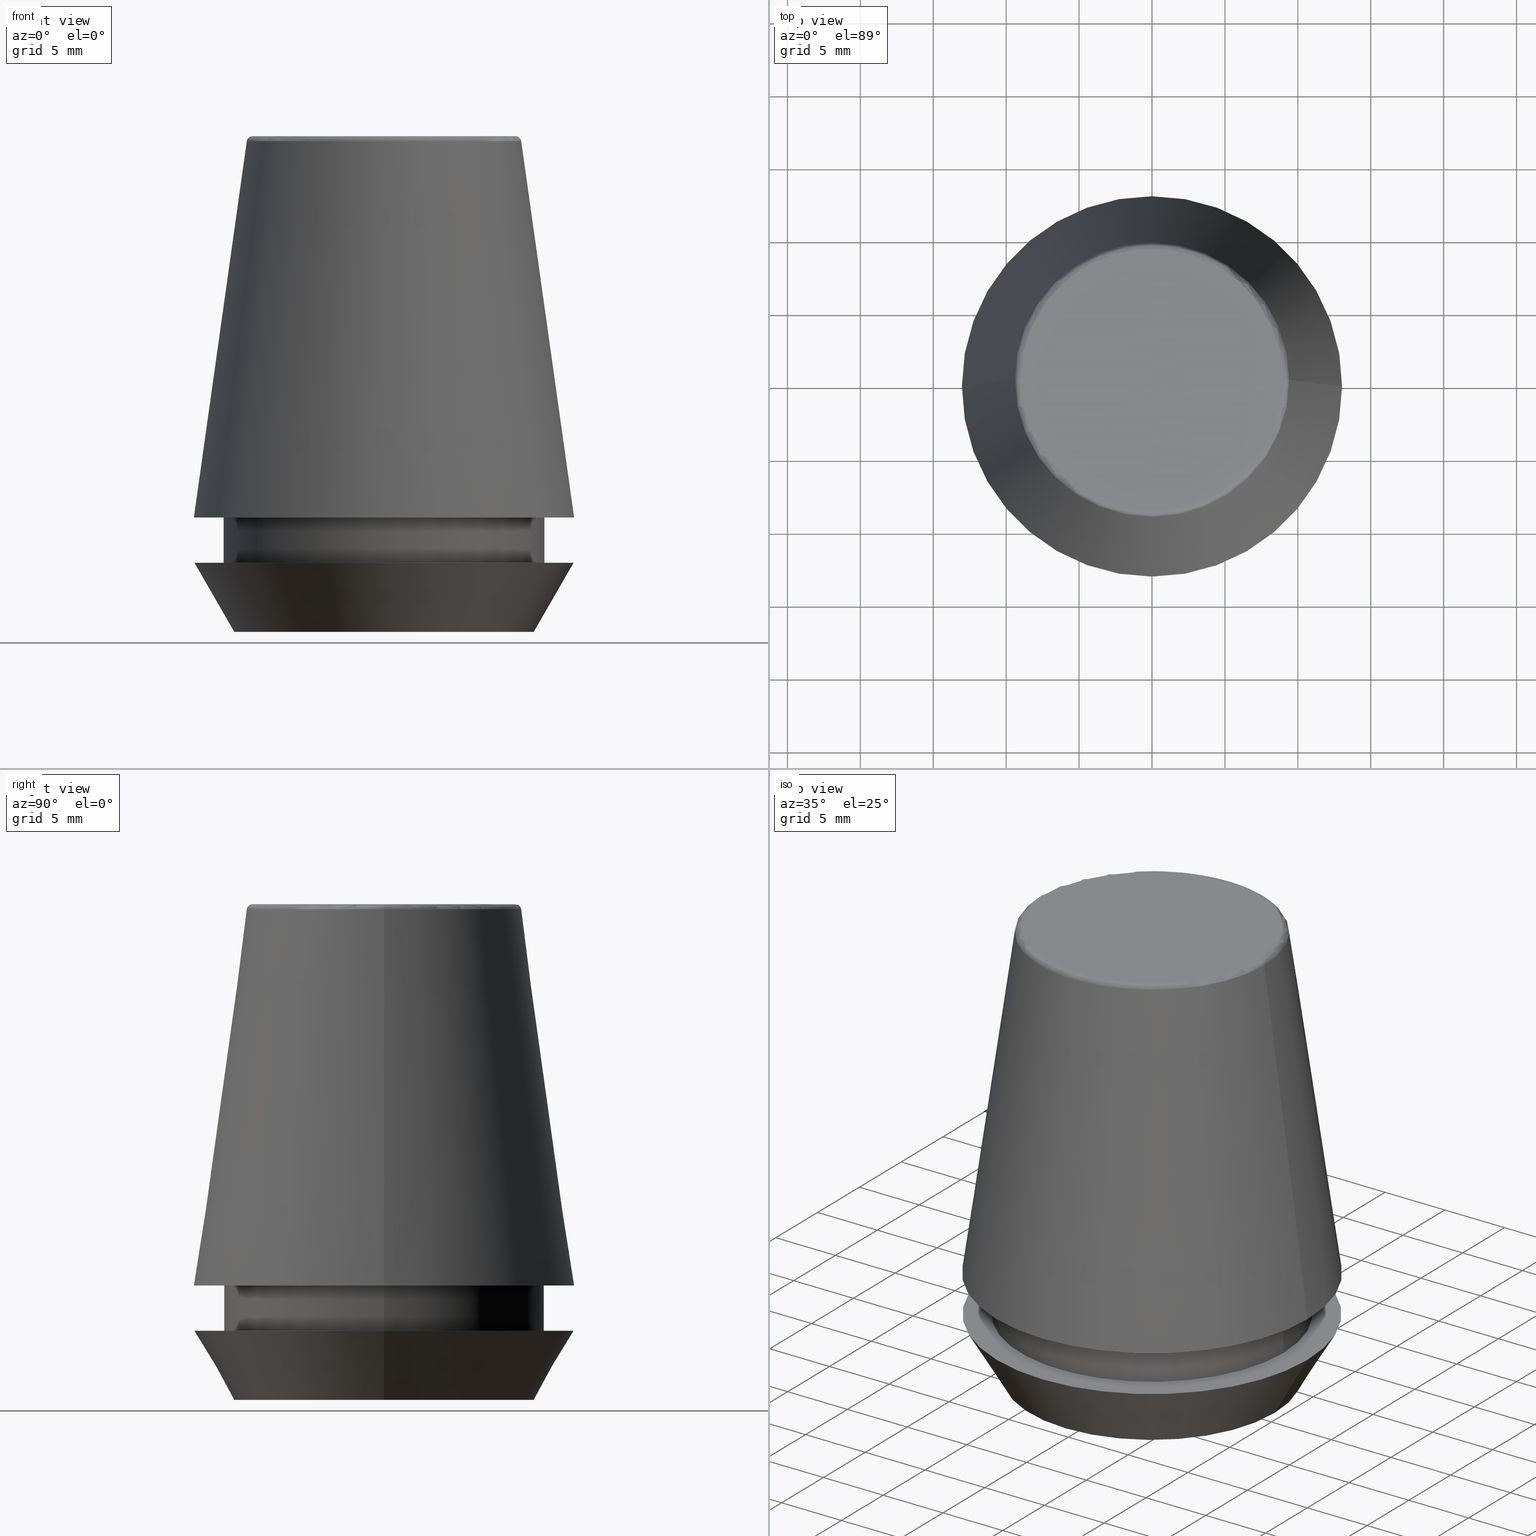
[diagram: canonical four-view strip — front | top / right | iso, engineering-drawing reading convention]
A machine part, canonical four-view strip (front | top / right | iso — engineering-drawing reading convention). The complete STEP part file that produces these views, byte-faithful:
ISO-10303-21;
HEADER;
FILE_DESCRIPTION (( 'STEP AP203' ),
    '1' );
FILE_NAME ('TAP COLLET ER 25G  7.0  X 5.5.STEP',
    '2019-04-09T09:58:05',
    ( '' ),
    ( '' ),
    'SwSTEP 2.0',
    'SolidWorks 2014',
    '' );
FILE_SCHEMA (( 'CONFIG_CONTROL_DESIGN' ));
ENDSEC;

DATA;
#1 = DATE_AND_TIME ( #14, #43 ) ;
#2 = ORIENTED_EDGE ( 'NONE', *, *, #250, .T. ) ;
#3 = APPLICATION_PROTOCOL_DEFINITION ( 'international standard', 'config_control_design', 1994, #4 ) ;
#4 = APPLICATION_CONTEXT ( 'configuration controlled 3d designs of mechanical parts and assemblies' ) ;
#5 = ADVANCED_FACE ( 'NONE', ( #219 ), #291, .T. ) ;
#6 = ADVANCED_FACE ( 'NONE', ( #253 ), #374, .T. ) ;
#7 = VERTEX_POINT ( 'NONE', #52 ) ;
#8 = DIRECTION ( 'NONE',  ( -1.000000000000000000, 1.224646799147353200E-016, 0.0000000000000000000 ) ) ;
#9 = PERSON_AND_ORGANIZATION ( #358, #142 ) ;
#10 = ORIENTED_EDGE ( 'NONE', *, *, #202, .F. ) ;
#11 = ORIENTED_EDGE ( 'NONE', *, *, #186, .T. ) ;
#12 = AXIS2_PLACEMENT_3D ( 'NONE', #345, #176, #41 ) ;
#13 = CARTESIAN_POINT ( 'NONE',  ( 0.0000000000000000000, 0.0000000000000000000, 7.842050807568890400 ) ) ;
#14 = CALENDAR_DATE ( 2019, 9, 4 ) ;
#15 = EDGE_LOOP ( 'NONE', ( #293, #312 ) ) ;
#16 = PERSON_AND_ORGANIZATION_ROLE ( 'design_owner' ) ;
#17 = CIRCLE ( 'NONE', #92, 0.3999999999999975800 ) ;
#18 = DIRECTION ( 'NONE',  ( 1.000000000000000000, 0.0000000000000000000, 0.0000000000000000000 ) ) ;
#19 = CARTESIAN_POINT ( 'NONE',  ( -9.012603057622234500, 1.127980121063915600E-015, 34.00000000000000000 ) ) ;
#20 = FACE_OUTER_BOUND ( 'NONE', #218, .T. ) ;
#21 = AXIS2_PLACEMENT_3D ( 'NONE', #375, #45, #90 ) ;
#22 = EDGE_LOOP ( 'NONE', ( #97, #268 ) ) ;
#23 = CC_DESIGN_APPROVAL ( #115, ( #120 ) ) ;
#24 = CIRCLE ( 'NONE', #246, 0.4000000000000010200 ) ;
#25 = LINE ( 'NONE', #301, #80 ) ;
#26 = EDGE_LOOP ( 'NONE', ( #209, #10, #328, #357 ) ) ;
#27 = APPROVAL_ROLE ( '' ) ;
#28 = PERSON_AND_ORGANIZATION_ROLE ( 'creator' ) ;
#29 = CIRCLE ( 'NONE', #46, 11.00000000000000000 ) ;
#30 = VERTEX_POINT ( 'NONE', #19 ) ;
#31 = DIRECTION ( 'NONE',  ( 0.0000000000000000000, 0.0000000000000000000, -1.000000000000000000 ) ) ;
#32 = CC_DESIGN_SECURITY_CLASSIFICATION ( #120, ( #335 ) ) ;
#33 = VERTEX_POINT ( 'NONE', #300 ) ;
#34 = DIRECTION ( 'NONE',  ( 0.0000000000000000000, 0.0000000000000000000, -1.000000000000000000 ) ) ;
#35 = LINE ( 'NONE', #194, #95 ) ;
#36 = CYLINDRICAL_SURFACE ( 'NONE', #44, 11.00000000000000000 ) ;
#37 = DIRECTION ( 'NONE',  ( 1.000000000000000000, 0.0000000000000000000, 0.0000000000000000000 ) ) ;
#38 = ORIENTED_EDGE ( 'NONE', *, *, #267, .T. ) ;
#39 = ADVANCED_FACE ( 'NONE', ( #275 ), #213, .T. ) ;
#40 = CC_DESIGN_PERSON_AND_ORGANIZATION_ASSIGNMENT ( #204, #62, ( #335 ) ) ;
#41 = DIRECTION ( 'NONE',  ( 1.000000000000000000, 0.0000000000000000000, 0.0000000000000000000 ) ) ;
#42 = ADVANCED_FACE ( 'NONE', ( #128, #181 ), #185, .F. ) ;
#43 = LOCAL_TIME ( 15, 28, 5.000000000000000000, #56 ) ;
#44 = AXIS2_PLACEMENT_3D ( 'NONE', #294, #377, #230 ) ;
#45 = DIRECTION ( 'NONE',  ( -0.0000000000000000000, -0.0000000000000000000, 1.000000000000000000 ) ) ;
#46 = AXIS2_PLACEMENT_3D ( 'NONE', #193, #365, #245 ) ;
#47 = CARTESIAN_POINT ( 'NONE',  ( 0.0000000000000000000, 0.0000000000000000000, 33.60000000000000100 ) ) ;
#48 = DIRECTION ( 'NONE',  ( -0.0000000000000000000, -0.0000000000000000000, 1.000000000000000000 ) ) ;
#49 = CARTESIAN_POINT ( 'NONE',  ( -10.26217568973925200, 1.424397449982127500E-015, 0.0000000000000000000 ) ) ;
#50 = LOCAL_TIME ( 15, 28, 5.000000000000000000, #368 ) ;
#51 = MANIFOLD_SOLID_BREP ( 'Revolve1', #236 ) ;
#52 = CARTESIAN_POINT ( 'NONE',  ( -13.03657776635556700, 0.0000000000000000000, 7.842050807568876200 ) ) ;
#53 = DATE_TIME_ROLE ( 'classification_date' ) ;
#54 = FACE_OUTER_BOUND ( 'NONE', #169, .T. ) ;
#55 = SHAPE_DEFINITION_REPRESENTATION ( #274, #284 ) ;
#56 = COORDINATED_UNIVERSAL_TIME_OFFSET ( 5, 30, .AHEAD. ) ;
#57 = CIRCLE ( 'NONE', #273, 11.00000000000000000 ) ;
#58 = CALENDAR_DATE ( 2019, 9, 4 ) ;
#59 = CIRCLE ( 'NONE', #21, 10.26217568973925200 ) ;
#60 = AXIS2_PLACEMENT_3D ( 'NONE', #261, #79, #179 ) ;
#61 = ORIENTED_EDGE ( 'NONE', *, *, #307, .F. ) ;
#62 = PERSON_AND_ORGANIZATION_ROLE ( 'design_supplier' ) ;
#63 = PRODUCT_RELATED_PRODUCT_CATEGORY ( 'detail', '', ( #385 ) ) ;
#64 = CARTESIAN_POINT ( 'NONE',  ( 0.0000000000000000000, 0.0000000000000000000, 0.0000000000000000000 ) ) ;
#65 = APPROVAL_PERSON_ORGANIZATION ( #78, #170, #27 ) ;
#66 = CIRCLE ( 'NONE', #60, 13.03657776635556700 ) ;
#67 = DIRECTION ( 'NONE',  ( -0.0000000000000000000, -0.0000000000000000000, 1.000000000000000000 ) ) ;
#68 = CARTESIAN_POINT ( 'NONE',  ( 0.0000000000000000000, 0.0000000000000000000, 7.842050807568876200 ) ) ;
#69 = DIRECTION ( 'NONE',  ( 1.000000000000000000, 0.0000000000000000000, 0.0000000000000000000 ) ) ;
#70 = FACE_OUTER_BOUND ( 'NONE', #15, .T. ) ;
#71 =( GEOMETRIC_REPRESENTATION_CONTEXT ( 3 ) GLOBAL_UNCERTAINTY_ASSIGNED_CONTEXT ( ( #237 ) ) GLOBAL_UNIT_ASSIGNED_CONTEXT ( ( #386, #104, #74 ) ) REPRESENTATION_CONTEXT ( 'NONE', 'WORKASPACE' ) );
#72 = DIRECTION ( 'NONE',  ( -0.0000000000000000000, -0.0000000000000000000, 1.000000000000000000 ) ) ;
#73 = CARTESIAN_POINT ( 'NONE',  ( 0.0000000000000000000, 0.0000000000000000000, 7.842050807568876200 ) ) ;
#74 =( NAMED_UNIT ( * ) SI_UNIT ( $, .STERADIAN. ) SOLID_ANGLE_UNIT ( ) );
#75 = APPROVAL_PERSON_ORGANIZATION ( #165, #366, #150 ) ;
#76 = CC_DESIGN_DATE_AND_TIME_ASSIGNMENT ( #247, #53, ( #120 ) ) ;
#77 = CIRCLE ( 'NONE', #175, 13.03657776635556700 ) ;
#78 = PERSON_AND_ORGANIZATION ( #358, #142 ) ;
#79 = DIRECTION ( 'NONE',  ( -0.0000000000000000000, -0.0000000000000000000, 1.000000000000000000 ) ) ;
#80 = VECTOR ( 'NONE', #126, 1000.000000000000200 ) ;
#81 = DIRECTION ( 'NONE',  ( 1.000000000000000000, 0.0000000000000000000, 0.0000000000000000000 ) ) ;
#82 = CARTESIAN_POINT ( 'NONE',  ( 0.0000000000000000000, 9.012603057622234500, 34.00000000000000000 ) ) ;
#83 = CARTESIAN_POINT ( 'NONE',  ( 0.0000000000000000000, 0.0000000000000000000, 0.0000000000000000000 ) ) ;
#84 = DIRECTION ( 'NONE',  ( 1.000000000000000000, 0.0000000000000000000, 0.0000000000000000000 ) ) ;
#85 = AXIS2_PLACEMENT_3D ( 'NONE', #276, #362, #248 ) ;
#86 = EDGE_LOOP ( 'NONE', ( #283, #11, #257, #224 ) ) ;
#87 = VECTOR ( 'NONE', #145, 1000.000000000000000 ) ;
#88 = CC_DESIGN_PERSON_AND_ORGANIZATION_ASSIGNMENT ( #384, #323, ( #120 ) ) ;
#89 = ADVANCED_FACE ( 'NONE', ( #155 ), #217, .T. ) ;
#90 = DIRECTION ( 'NONE',  ( 1.000000000000000000, 0.0000000000000000000, 0.0000000000000000000 ) ) ;
#91 = ORIENTED_EDGE ( 'NONE', *, *, #220, .T. ) ;
#92 = AXIS2_PLACEMENT_3D ( 'NONE', #331, #363, #31 ) ;
#93 = ORIENTED_EDGE ( 'NONE', *, *, #149, .F. ) ;
#94 = DATE_TIME_ROLE ( 'creation_date' ) ;
#95 = VECTOR ( 'NONE', #98, 1000.000000000000000 ) ;
#96 = AXIS2_PLACEMENT_3D ( 'NONE', #136, #259, #303 ) ;
#97 = ORIENTED_EDGE ( 'NONE', *, *, #171, .T. ) ;
#98 = DIRECTION ( 'NONE',  ( 0.1391731009600587800, 1.704378926181474000E-017, -0.9902680687415712500 ) ) ;
#99 = VERTEX_POINT ( 'NONE', #49 ) ;
#100 = CARTESIAN_POINT ( 'NONE',  ( 0.0000000000000000000, 0.0000000000000000000, 0.0000000000000000000 ) ) ;
#101 = CARTESIAN_POINT ( 'NONE',  ( -13.03657776635556700, 0.0000000000000000000, 7.842050807568876200 ) ) ;
#102 = AXIS2_PLACEMENT_3D ( 'NONE', #47, #112, #269 ) ;
#103 = VERTEX_POINT ( 'NONE', #347 ) ;
#104 =( NAMED_UNIT ( * ) PLANE_ANGLE_UNIT ( ) SI_UNIT ( $, .RADIAN. ) );
#105 = DIRECTION ( 'NONE',  ( -0.4999999999999957800, 6.123233995736714300E-017, 0.8660254037844410400 ) ) ;
#106 = CARTESIAN_POINT ( 'NONE',  ( -10.26217568973925200, 1.256754061072695800E-015, 0.0000000000000000000 ) ) ;
#107 = DATE_AND_TIME ( #127, #134 ) ;
#108 = CIRCLE ( 'NONE', #154, 9.012603057622234500 ) ;
#109 = CIRCLE ( 'NONE', #96, 10.26217568973925200 ) ;
#110 = EDGE_LOOP ( 'NONE', ( #215, #260, #119, #330 ) ) ;
#111 = ADVANCED_FACE ( 'NONE', ( #305 ), #36, .T. ) ;
#112 = DIRECTION ( 'NONE',  ( -0.0000000000000000000, -0.0000000000000000000, 1.000000000000000000 ) ) ;
#113 = EDGE_LOOP ( 'NONE', ( #184, #326, #167, #370 ) ) ;
#114 = DIRECTION ( 'NONE',  ( 1.000000000000000000, 0.0000000000000000000, 0.0000000000000000000 ) ) ;
#115 = APPROVAL ( #216, 'UNSPECIFIED' ) ;
#116 = DIRECTION ( 'NONE',  ( 0.0000000000000000000, 0.0000000000000000000, -1.000000000000000000 ) ) ;
#117 = TOROIDAL_SURFACE ( 'NONE', #102, 9.012603057622234500, 0.4000000000000009700 ) ;
#118 = ORIENTED_EDGE ( 'NONE', *, *, #171, .F. ) ;
#119 = ORIENTED_EDGE ( 'NONE', *, *, #262, .F. ) ;
#120 = SECURITY_CLASSIFICATION ( '', '', #130 ) ;
#121 = APPROVAL_ROLE ( '' ) ;
#122 = ORIENTED_EDGE ( 'NONE', *, *, #267, .F. ) ;
#123 = ADVANCED_FACE ( 'NONE', ( #20 ), #117, .T. ) ;
#124 = EDGE_LOOP ( 'NONE', ( #251, #122 ) ) ;
#125 = CARTESIAN_POINT ( 'NONE',  ( -9.012603057622234500, 1.103725548650271700E-015, 33.60000000000000100 ) ) ;
#126 = DIRECTION ( 'NONE',  ( 0.4999999999999957800, 0.0000000000000000000, 0.8660254037844410400 ) ) ;
#127 = CALENDAR_DATE ( 2019, 9, 4 ) ;
#128 = FACE_OUTER_BOUND ( 'NONE', #129, .T. ) ;
#129 = EDGE_LOOP ( 'NONE', ( #339, #201 ) ) ;
#130 = SECURITY_CLASSIFICATION_LEVEL ( 'unclassified' ) ;
#131 = APPROVAL_STATUS ( 'not_yet_approved' ) ;
#132 = ORIENTED_EDGE ( 'NONE', *, *, #295, .T. ) ;
#133 = PRODUCT_DEFINITION ( 'UNKNOWN', '', #335, #156 ) ;
#134 = LOCAL_TIME ( 15, 28, 5.000000000000000000, #159 ) ;
#135 = CIRCLE ( 'NONE', #85, 9.408710285118862900 ) ;
#136 = CARTESIAN_POINT ( 'NONE',  ( 0.0000000000000000000, 0.0000000000000000000, 0.0000000000000000000 ) ) ;
#137 = DIRECTION ( 'NONE',  ( -0.0000000000000000000, -0.0000000000000000000, 1.000000000000000000 ) ) ;
#138 = CC_DESIGN_APPROVAL ( #170, ( #335 ) ) ;
#139 = VERTEX_POINT ( 'NONE', #316 ) ;
#140 = CONICAL_SURFACE ( 'NONE', #227, 10.26217568973925200, 0.5235987755982940400 ) ;
#141 = DIRECTION ( 'NONE',  ( 1.000000000000000000, 0.0000000000000000000, 0.0000000000000000000 ) ) ;
#142 = ORGANIZATION ( 'UNSPECIFIED', 'UNSPECIFIED', '' ) ;
#143 = CARTESIAN_POINT ( 'NONE',  ( 10.26217568973925200, 0.0000000000000000000, 0.0000000000000000000 ) ) ;
#144 = ADVANCED_FACE ( 'NONE', ( #192 ), #207, .F. ) ;
#145 = DIRECTION ( 'NONE',  ( -0.0000000000000000000, -0.0000000000000000000, 1.000000000000000000 ) ) ;
#146 = DIRECTION ( 'NONE',  ( -1.000000000000000000, 0.0000000000000000000, -0.0000000000000000000 ) ) ;
#147 = EDGE_CURVE ( 'NONE', #30, #160, #342, .T. ) ;
#148 = APPLICATION_PROTOCOL_DEFINITION ( 'international standard', 'config_control_design', 1994, #266 ) ;
#149 = EDGE_CURVE ( 'NONE', #33, #195, #270, .T. ) ;
#150 = APPROVAL_ROLE ( '' ) ;
#151 = VECTOR ( 'NONE', #105, 1000.000000000000200 ) ;
#152 = EDGE_LOOP ( 'NONE', ( #278, #132, #2, #93 ) ) ;
#153 = EDGE_CURVE ( 'NONE', #7, #103, #66, .T. ) ;
#154 = AXIS2_PLACEMENT_3D ( 'NONE', #372, #67, #141 ) ;
#155 = FACE_OUTER_BOUND ( 'NONE', #113, .T. ) ;
#156 = DESIGN_CONTEXT ( 'detailed design', #266, 'design' ) ;
#157 = DIRECTION ( 'NONE',  ( -0.0000000000000000000, -0.0000000000000000000, 1.000000000000000000 ) ) ;
#158 = AXIS2_PLACEMENT_3D ( 'NONE', #13, #292, #314 ) ;
#159 = COORDINATED_UNIVERSAL_TIME_OFFSET ( 5, 30, .AHEAD. ) ;
#160 = VERTEX_POINT ( 'NONE', #315 ) ;
#161 = VECTOR ( 'NONE', #174, 1000.000000000000000 ) ;
#162 = DIRECTION ( 'NONE',  ( 1.224646799147353200E-016, 1.000000000000000000, 0.0000000000000000000 ) ) ;
#163 = EDGE_LOOP ( 'NONE', ( #367, #221, #91, #288 ) ) ;
#164 = CARTESIAN_POINT ( 'NONE',  ( 9.408710285118862900, 1.374377508408924700E-015, 33.65566924038402900 ) ) ;
#165 = PERSON_AND_ORGANIZATION ( #358, #142 ) ;
#166 = EDGE_CURVE ( 'NONE', #187, #243, #351, .T. ) ;
#167 = ORIENTED_EDGE ( 'NONE', *, *, #296, .T. ) ;
#168 = DIRECTION ( 'NONE',  ( 0.0000000000000000000, -0.0000000000000000000, 1.000000000000000000 ) ) ;
#169 = EDGE_LOOP ( 'NONE', ( #298, #38, #189, #61 ) ) ;
#170 = APPROVAL ( #131, 'UNSPECIFIED' ) ;
#171 = EDGE_CURVE ( 'NONE', #160, #30, #108, .T. ) ;
#172 = DIRECTION ( 'NONE',  ( 1.000000000000000000, 0.0000000000000000000, 0.0000000000000000000 ) ) ;
#173 = DIRECTION ( 'NONE',  ( -0.0000000000000000000, -0.0000000000000000000, 1.000000000000000000 ) ) ;
#174 = DIRECTION ( 'NONE',  ( -0.1391731009600587800, 0.0000000000000000000, -0.9902680687415712500 ) ) ;
#175 = AXIS2_PLACEMENT_3D ( 'NONE', #191, #282, #302 ) ;
#176 = DIRECTION ( 'NONE',  ( -0.0000000000000000000, -0.0000000000000000000, 1.000000000000000000 ) ) ;
#177 = VERTEX_POINT ( 'NONE', #143 ) ;
#178 = ORIENTED_EDGE ( 'NONE', *, *, #149, .T. ) ;
#179 = DIRECTION ( 'NONE',  ( 1.000000000000000000, 0.0000000000000000000, 0.0000000000000000000 ) ) ;
#180 = CARTESIAN_POINT ( 'NONE',  ( 0.0000000000000000000, 0.0000000000000000000, 4.742050807568884500 ) ) ;
#181 = FACE_BOUND ( 'NONE', #239, .T. ) ;
#182 = VECTOR ( 'NONE', #173, 1000.000000000000000 ) ;
#183 = CARTESIAN_POINT ( 'NONE',  ( 0.0000000000000000000, 0.0000000000000000000, 33.60000000000000100 ) ) ;
#184 = ORIENTED_EDGE ( 'NONE', *, *, #356, .F. ) ;
#185 = PLANE ( 'NONE',  #277 ) ;
#186 = EDGE_CURVE ( 'NONE', #243, #33, #199, .T. ) ;
#187 = VERTEX_POINT ( 'NONE', #229 ) ;
#188 = CONICAL_SURFACE ( 'NONE', #334, 10.26217568973925200, 0.5235987755982940400 ) ;
#189 = ORIENTED_EDGE ( 'NONE', *, *, #264, .T. ) ;
#190 = CC_DESIGN_PERSON_AND_ORGANIZATION_ASSIGNMENT ( #9, #16, ( #385 ) ) ;
#191 = CARTESIAN_POINT ( 'NONE',  ( 0.0000000000000000000, 0.0000000000000000000, 7.842050807568876200 ) ) ;
#192 = FACE_OUTER_BOUND ( 'NONE', #22, .T. ) ;
#193 = CARTESIAN_POINT ( 'NONE',  ( 0.0000000000000000000, 0.0000000000000000000, 4.742050807568884500 ) ) ;
#194 = CARTESIAN_POINT ( 'NONE',  ( 13.03657776635556700, 1.596520323340289600E-015, 7.842050807568876200 ) ) ;
#195 = VERTEX_POINT ( 'NONE', #346 ) ;
#196 = EDGE_CURVE ( 'NONE', #321, #139, #325, .T. ) ;
#197 = CARTESIAN_POINT ( 'NONE',  ( -11.00000000000000000, 1.347111479062088400E-015, 4.742050807568884500 ) ) ;
#198 = PLANE ( 'NONE',  #286 ) ;
#199 = LINE ( 'NONE', #289, #182 ) ;
#200 = CARTESIAN_POINT ( 'NONE',  ( 0.0000000000000000000, 0.0000000000000000000, 33.65566924038402900 ) ) ;
#201 = ORIENTED_EDGE ( 'NONE', *, *, #220, .F. ) ;
#202 = EDGE_CURVE ( 'NONE', #139, #321, #135, .T. ) ;
#203 = EDGE_CURVE ( 'NONE', #139, #7, #309, .T. ) ;
#204 = PERSON_AND_ORGANIZATION ( #358, #142 ) ;
#205 = EDGE_CURVE ( 'NONE', #321, #103, #35, .T. ) ;
#206 = CARTESIAN_POINT ( 'NONE',  ( 0.0000000000000000000, 0.0000000000000000000, 34.00000000000000000 ) ) ;
#207 = PLANE ( 'NONE',  #343 ) ;
#208 = CARTESIAN_POINT ( 'NONE',  ( 0.0000000000000000000, 0.0000000000000000000, 7.842050807568890400 ) ) ;
#209 = ORIENTED_EDGE ( 'NONE', *, *, #205, .F. ) ;
#210 = APPROVAL_STATUS ( 'not_yet_approved' ) ;
#211 = PERSON_AND_ORGANIZATION ( #358, #142 ) ;
#212 = PERSON_AND_ORGANIZATION_ROLE ( 'creator' ) ;
#213 = CYLINDRICAL_SURFACE ( 'NONE', #240, 11.00000000000000000 ) ;
#214 = FACE_OUTER_BOUND ( 'NONE', #110, .T. ) ;
#215 = ORIENTED_EDGE ( 'NONE', *, *, #252, .T. ) ;
#216 = APPROVAL_STATUS ( 'not_yet_approved' ) ;
#217 = TOROIDAL_SURFACE ( 'NONE', #280, 9.012603057622234500, 0.4000000000000009700 ) ;
#218 = EDGE_LOOP ( 'NONE', ( #344, #333, #118, #272 ) ) ;
#219 = FACE_OUTER_BOUND ( 'NONE', #26, .T. ) ;
#220 = EDGE_CURVE ( 'NONE', #103, #7, #77, .T. ) ;
#221 = ORIENTED_EDGE ( 'NONE', *, *, #205, .T. ) ;
#222 = DIRECTION ( 'NONE',  ( 1.000000000000000000, 0.0000000000000000000, 0.0000000000000000000 ) ) ;
#223 = COORDINATED_UNIVERSAL_TIME_OFFSET ( 5, 30, .AHEAD. ) ;
#224 = ORIENTED_EDGE ( 'NONE', *, *, #250, .F. ) ;
#225 = EDGE_LOOP ( 'NONE', ( #235, #379 ) ) ;
#226 = AXIS2_PLACEMENT_3D ( 'NONE', #310, #72, #114 ) ;
#227 = AXIS2_PLACEMENT_3D ( 'NONE', #83, #48, #306 ) ;
#228 = LINE ( 'NONE', #371, #87 ) ;
#229 = CARTESIAN_POINT ( 'NONE',  ( 11.00000000000000000, 0.0000000000000000000, 4.742050807568884500 ) ) ;
#230 = DIRECTION ( 'NONE',  ( 1.000000000000000000, 0.0000000000000000000, 0.0000000000000000000 ) ) ;
#231 = AXIS2_PLACEMENT_3D ( 'NONE', #200, #241, #37 ) ;
#232 = APPROVAL_PERSON_ORGANIZATION ( #238, #115, #121 ) ;
#233 = DIRECTION ( 'NONE',  ( -0.0000000000000000000, -0.0000000000000000000, 1.000000000000000000 ) ) ;
#234 = DIRECTION ( 'NONE',  ( -0.0000000000000000000, -0.0000000000000000000, 1.000000000000000000 ) ) ;
#235 = ORIENTED_EDGE ( 'NONE', *, *, #166, .F. ) ;
#236 = CLOSED_SHELL ( 'NONE', ( #123, #6, #111, #327, #329, #350, #354, #39, #42, #5, #89, #144 ) ) ;
#237 = UNCERTAINTY_MEASURE_WITH_UNIT (LENGTH_MEASURE( 1.000000000000000100E-005 ), #386, 'distance_accuracy_value', 'NONE');
#238 = PERSON_AND_ORGANIZATION ( #358, #142 ) ;
#239 = EDGE_LOOP ( 'NONE', ( #287, #178 ) ) ;
#240 = AXIS2_PLACEMENT_3D ( 'NONE', #349, #234, #84 ) ;
#241 = DIRECTION ( 'NONE',  ( -0.0000000000000000000, -0.0000000000000000000, 1.000000000000000000 ) ) ;
#242 = CARTESIAN_POINT ( 'NONE',  ( -13.00000000000000000, 1.592040838891559100E-015, 4.742050807568884500 ) ) ;
#243 = VERTEX_POINT ( 'NONE', #197 ) ;
#244 = AXIS2_PLACEMENT_3D ( 'NONE', #73, #382, #332 ) ;
#245 = DIRECTION ( 'NONE',  ( 1.000000000000000000, 0.0000000000000000000, 0.0000000000000000000 ) ) ;
#246 = AXIS2_PLACEMENT_3D ( 'NONE', #125, #162, #8 ) ;
#247 = DATE_AND_TIME ( #360, #381 ) ;
#248 = DIRECTION ( 'NONE',  ( 1.000000000000000000, 0.0000000000000000000, 0.0000000000000000000 ) ) ;
#249 = FACE_OUTER_BOUND ( 'NONE', #124, .T. ) ;
#250 = EDGE_CURVE ( 'NONE', #187, #195, #228, .T. ) ;
#251 = ORIENTED_EDGE ( 'NONE', *, *, #252, .F. ) ;
#252 = EDGE_CURVE ( 'NONE', #177, #99, #59, .T. ) ;
#253 = FACE_OUTER_BOUND ( 'NONE', #163, .T. ) ;
#254 = CIRCLE ( 'NONE', #226, 13.00000000000000000 ) ;
#255 = EDGE_CURVE ( 'NONE', #99, #281, #324, .T. ) ;
#256 = CC_DESIGN_PERSON_AND_ORGANIZATION_ASSIGNMENT ( #304, #28, ( #335 ) ) ;
#257 = ORIENTED_EDGE ( 'NONE', *, *, #299, .F. ) ;
#258 = AXIS2_PLACEMENT_3D ( 'NONE', #180, #361, #279 ) ;
#259 = DIRECTION ( 'NONE',  ( -0.0000000000000000000, -0.0000000000000000000, 1.000000000000000000 ) ) ;
#260 = ORIENTED_EDGE ( 'NONE', *, *, #255, .T. ) ;
#261 = CARTESIAN_POINT ( 'NONE',  ( 0.0000000000000000000, 0.0000000000000000000, 7.842050807568876200 ) ) ;
#262 = EDGE_CURVE ( 'NONE', #387, #281, #311, .T. ) ;
#263 = DIRECTION ( 'NONE',  ( -0.0000000000000000000, -0.0000000000000000000, 1.000000000000000000 ) ) ;
#264 = EDGE_CURVE ( 'NONE', #177, #387, #25, .T. ) ;
#265 = DIRECTION ( 'NONE',  ( 0.0000000000000000000, 0.0000000000000000000, -1.000000000000000000 ) ) ;
#266 = APPLICATION_CONTEXT ( 'configuration controlled 3d designs of mechanical parts and assemblies' ) ;
#267 = EDGE_CURVE ( 'NONE', #99, #177, #109, .T. ) ;
#268 = ORIENTED_EDGE ( 'NONE', *, *, #147, .T. ) ;
#269 = DIRECTION ( 'NONE',  ( 1.000000000000000000, 0.0000000000000000000, 0.0000000000000000000 ) ) ;
#270 = CIRCLE ( 'NONE', #158, 11.00000000000000000 ) ;
#271 = AXIS2_PLACEMENT_3D ( 'NONE', #68, #116, #380 ) ;
#272 = ORIENTED_EDGE ( 'NONE', *, *, #296, .F. ) ;
#273 = AXIS2_PLACEMENT_3D ( 'NONE', #208, #157, #348 ) ;
#274 = PRODUCT_DEFINITION_SHAPE ( 'NONE', 'NONE',  #133 ) ;
#275 = FACE_OUTER_BOUND ( 'NONE', #152, .T. ) ;
#276 = CARTESIAN_POINT ( 'NONE',  ( 0.0000000000000000000, 0.0000000000000000000, 33.65566924038402900 ) ) ;
#277 = AXIS2_PLACEMENT_3D ( 'NONE', #322, #378, #18 ) ;
#278 = ORIENTED_EDGE ( 'NONE', *, *, #186, .F. ) ;
#279 = DIRECTION ( 'NONE',  ( 1.000000000000000000, 0.0000000000000000000, 0.0000000000000000000 ) ) ;
#280 = AXIS2_PLACEMENT_3D ( 'NONE', #183, #233, #319 ) ;
#281 = VERTEX_POINT ( 'NONE', #242 ) ;
#282 = DIRECTION ( 'NONE',  ( -0.0000000000000000000, -0.0000000000000000000, 1.000000000000000000 ) ) ;
#283 = ORIENTED_EDGE ( 'NONE', *, *, #166, .T. ) ;
#284 = ADVANCED_BREP_SHAPE_REPRESENTATION ( 'TAP COLLET ER 25G  7.0  X 5.5', ( #51, #320 ), #71 ) ;
#285 = DATE_AND_TIME ( #58, #50 ) ;
#286 = AXIS2_PLACEMENT_3D ( 'NONE', #313, #34, #369 ) ;
#287 = ORIENTED_EDGE ( 'NONE', *, *, #299, .T. ) ;
#288 = ORIENTED_EDGE ( 'NONE', *, *, #203, .F. ) ;
#289 = CARTESIAN_POINT ( 'NONE',  ( -11.00000000000000000, 1.347111479062088400E-015, 101.8074564848000400 ) ) ;
#290 = LOCAL_TIME ( 15, 28, 5.000000000000000000, #223 ) ;
#291 = CONICAL_SURFACE ( 'NONE', #271, 13.03657776635556700, 0.1396263401595396500 ) ;
#292 = DIRECTION ( 'NONE',  ( -0.0000000000000000000, -0.0000000000000000000, 1.000000000000000000 ) ) ;
#293 = ORIENTED_EDGE ( 'NONE', *, *, #262, .T. ) ;
#294 = CARTESIAN_POINT ( 'NONE',  ( 0.0000000000000000000, 0.0000000000000000000, 101.8074564848000400 ) ) ;
#295 = EDGE_CURVE ( 'NONE', #243, #187, #29, .T. ) ;
#296 = EDGE_CURVE ( 'NONE', #321, #160, #17, .T. ) ;
#297 = APPROVAL_DATE_TIME ( #376, #366 ) ;
#298 = ORIENTED_EDGE ( 'NONE', *, *, #255, .F. ) ;
#299 = EDGE_CURVE ( 'NONE', #195, #33, #57, .T. ) ;
#300 = CARTESIAN_POINT ( 'NONE',  ( -11.00000000000000000, 1.347111479062088400E-015, 7.842050807568890400 ) ) ;
#301 = CARTESIAN_POINT ( 'NONE',  ( 10.26217568973925200, 0.0000000000000000000, 0.0000000000000000000 ) ) ;
#302 = DIRECTION ( 'NONE',  ( 1.000000000000000000, 0.0000000000000000000, 0.0000000000000000000 ) ) ;
#303 = DIRECTION ( 'NONE',  ( 1.000000000000000000, 0.0000000000000000000, 0.0000000000000000000 ) ) ;
#304 = PERSON_AND_ORGANIZATION ( #358, #142 ) ;
#305 = FACE_OUTER_BOUND ( 'NONE', #86, .T. ) ;
#306 = DIRECTION ( 'NONE',  ( 1.000000000000000000, 0.0000000000000000000, 0.0000000000000000000 ) ) ;
#307 = EDGE_CURVE ( 'NONE', #281, #387, #254, .T. ) ;
#308 = PLANE ( 'NONE',  #337 ) ;
#309 = LINE ( 'NONE', #101, #161 ) ;
#310 = CARTESIAN_POINT ( 'NONE',  ( 0.0000000000000000000, 0.0000000000000000000, 4.742050807568884500 ) ) ;
#311 = CIRCLE ( 'NONE', #258, 13.00000000000000000 ) ;
#312 = ORIENTED_EDGE ( 'NONE', *, *, #307, .T. ) ;
#313 = CARTESIAN_POINT ( 'NONE',  ( 0.0000000000000000000, 13.00000000000000000, 4.742050807568884500 ) ) ;
#314 = DIRECTION ( 'NONE',  ( 1.000000000000000000, 0.0000000000000000000, 0.0000000000000000000 ) ) ;
#315 = CARTESIAN_POINT ( 'NONE',  ( 9.012603057622234500, 0.0000000000000000000, 34.00000000000000000 ) ) ;
#316 = CARTESIAN_POINT ( 'NONE',  ( -9.408710285118862900, 0.0000000000000000000, 33.65566924038402900 ) ) ;
#317 = MECHANICAL_CONTEXT ( 'NONE', #4, 'mechanical' ) ;
#318 = APPROVAL_DATE_TIME ( #1, #170 ) ;
#319 = DIRECTION ( 'NONE',  ( 1.000000000000000000, 0.0000000000000000000, 0.0000000000000000000 ) ) ;
#320 = AXIS2_PLACEMENT_3D ( 'NONE', #100, #338, #69 ) ;
#321 = VERTEX_POINT ( 'NONE', #164 ) ;
#322 = CARTESIAN_POINT ( 'NONE',  ( 0.0000000000000000000, 13.03657776635556700, 7.842050807568883300 ) ) ;
#323 = PERSON_AND_ORGANIZATION_ROLE ( 'classification_officer' ) ;
#324 = LINE ( 'NONE', #106, #151 ) ;
#325 = CIRCLE ( 'NONE', #231, 9.408710285118862900 ) ;
#326 = ORIENTED_EDGE ( 'NONE', *, *, #202, .T. ) ;
#327 = ADVANCED_FACE ( 'NONE', ( #214 ), #140, .T. ) ;
#328 = ORIENTED_EDGE ( 'NONE', *, *, #203, .T. ) ;
#329 = ADVANCED_FACE ( 'NONE', ( #249 ), #308, .F. ) ;
#330 = ORIENTED_EDGE ( 'NONE', *, *, #264, .F. ) ;
#331 = CARTESIAN_POINT ( 'NONE',  ( 9.012603057622234500, 0.0000000000000000000, 33.60000000000000100 ) ) ;
#332 = DIRECTION ( 'NONE',  ( -1.000000000000000000, 0.0000000000000000000, 0.0000000000000000000 ) ) ;
#333 = ORIENTED_EDGE ( 'NONE', *, *, #356, .T. ) ;
#334 = AXIS2_PLACEMENT_3D ( 'NONE', #341, #137, #222 ) ;
#335 = PRODUCT_DEFINITION_FORMATION_WITH_SPECIFIED_SOURCE ( 'ANY', '', #385, .NOT_KNOWN. ) ;
#336 = APPROVAL_DATE_TIME ( #285, #115 ) ;
#337 = AXIS2_PLACEMENT_3D ( 'NONE', #64, #168, #172 ) ;
#338 = DIRECTION ( 'NONE',  ( 0.0000000000000000000, 0.0000000000000000000, 1.000000000000000000 ) ) ;
#339 = ORIENTED_EDGE ( 'NONE', *, *, #153, .F. ) ;
#340 = AXIS2_PLACEMENT_3D ( 'NONE', #206, #263, #81 ) ;
#341 = CARTESIAN_POINT ( 'NONE',  ( 0.0000000000000000000, 0.0000000000000000000, 0.0000000000000000000 ) ) ;
#342 = CIRCLE ( 'NONE', #340, 9.012603057622234500 ) ;
#343 = AXIS2_PLACEMENT_3D ( 'NONE', #82, #265, #146 ) ;
#344 = ORIENTED_EDGE ( 'NONE', *, *, #196, .T. ) ;
#345 = CARTESIAN_POINT ( 'NONE',  ( 0.0000000000000000000, 0.0000000000000000000, 4.742050807568884500 ) ) ;
#346 = CARTESIAN_POINT ( 'NONE',  ( 11.00000000000000000, 0.0000000000000000000, 7.842050807568890400 ) ) ;
#347 = CARTESIAN_POINT ( 'NONE',  ( 13.03657776635556700, 1.596520323340289600E-015, 7.842050807568876200 ) ) ;
#348 = DIRECTION ( 'NONE',  ( 1.000000000000000000, 0.0000000000000000000, 0.0000000000000000000 ) ) ;
#349 = CARTESIAN_POINT ( 'NONE',  ( 0.0000000000000000000, 0.0000000000000000000, 101.8074564848000400 ) ) ;
#350 = ADVANCED_FACE ( 'NONE', ( #54 ), #188, .T. ) ;
#351 = CIRCLE ( 'NONE', #12, 11.00000000000000000 ) ;
#352 = CC_DESIGN_DATE_AND_TIME_ASSIGNMENT ( #107, #94, ( #133 ) ) ;
#353 = COORDINATED_UNIVERSAL_TIME_OFFSET ( 5, 30, .AHEAD. ) ;
#354 = ADVANCED_FACE ( 'NONE', ( #383, #70 ), #198, .F. ) ;
#355 = CC_DESIGN_PERSON_AND_ORGANIZATION_ASSIGNMENT ( #211, #212, ( #133 ) ) ;
#356 = EDGE_CURVE ( 'NONE', #139, #30, #24, .T. ) ;
#357 = ORIENTED_EDGE ( 'NONE', *, *, #153, .T. ) ;
#358 = PERSON ( 'UNSPECIFIED', 'UNSPECIFIED', 'UNSPECIFIED', ('UNSPECIFIED'), ('UNSPECIFIED'), ('UNSPECIFIED') ) ;
#359 = CARTESIAN_POINT ( 'NONE',  ( 13.00000000000000000, 0.0000000000000000000, 4.742050807568884500 ) ) ;
#360 = CALENDAR_DATE ( 2019, 9, 4 ) ;
#361 = DIRECTION ( 'NONE',  ( -0.0000000000000000000, -0.0000000000000000000, 1.000000000000000000 ) ) ;
#362 = DIRECTION ( 'NONE',  ( -0.0000000000000000000, -0.0000000000000000000, 1.000000000000000000 ) ) ;
#363 = DIRECTION ( 'NONE',  ( 0.0000000000000000000, -1.000000000000000000, 0.0000000000000000000 ) ) ;
#364 = CC_DESIGN_APPROVAL ( #366, ( #133 ) ) ;
#365 = DIRECTION ( 'NONE',  ( -0.0000000000000000000, -0.0000000000000000000, 1.000000000000000000 ) ) ;
#366 = APPROVAL ( #210, 'UNSPECIFIED' ) ;
#367 = ORIENTED_EDGE ( 'NONE', *, *, #196, .F. ) ;
#368 = COORDINATED_UNIVERSAL_TIME_OFFSET ( 5, 30, .AHEAD. ) ;
#369 = DIRECTION ( 'NONE',  ( -1.000000000000000000, 0.0000000000000000000, -0.0000000000000000000 ) ) ;
#370 = ORIENTED_EDGE ( 'NONE', *, *, #147, .F. ) ;
#371 = CARTESIAN_POINT ( 'NONE',  ( 11.00000000000000000, 0.0000000000000000000, 101.8074564848000400 ) ) ;
#372 = CARTESIAN_POINT ( 'NONE',  ( 0.0000000000000000000, 0.0000000000000000000, 34.00000000000000000 ) ) ;
#373 = CALENDAR_DATE ( 2019, 9, 4 ) ;
#374 = CONICAL_SURFACE ( 'NONE', #244, 13.03657776635556700, 0.1396263401595396500 ) ;
#375 = CARTESIAN_POINT ( 'NONE',  ( 0.0000000000000000000, 0.0000000000000000000, 0.0000000000000000000 ) ) ;
#376 = DATE_AND_TIME ( #373, #290 ) ;
#377 = DIRECTION ( 'NONE',  ( -0.0000000000000000000, -0.0000000000000000000, 1.000000000000000000 ) ) ;
#378 = DIRECTION ( 'NONE',  ( 0.0000000000000000000, -0.0000000000000000000, 1.000000000000000000 ) ) ;
#379 = ORIENTED_EDGE ( 'NONE', *, *, #295, .F. ) ;
#380 = DIRECTION ( 'NONE',  ( -1.000000000000000000, 0.0000000000000000000, 0.0000000000000000000 ) ) ;
#381 = LOCAL_TIME ( 15, 28, 5.000000000000000000, #353 ) ;
#382 = DIRECTION ( 'NONE',  ( 0.0000000000000000000, 0.0000000000000000000, -1.000000000000000000 ) ) ;
#383 = FACE_BOUND ( 'NONE', #225, .T. ) ;
#384 = PERSON_AND_ORGANIZATION ( #358, #142 ) ;
#385 = PRODUCT ( 'TAP COLLET ER 25G  7.0  X 5.5', 'TAP COLLET ER 25G  7.0  X 5.5', '', ( #317 ) ) ;
#386 =( LENGTH_UNIT ( ) NAMED_UNIT ( * ) SI_UNIT ( .MILLI., .METRE. ) );
#387 = VERTEX_POINT ( 'NONE', #359 ) ;
ENDSEC;
END-ISO-10303-21;
